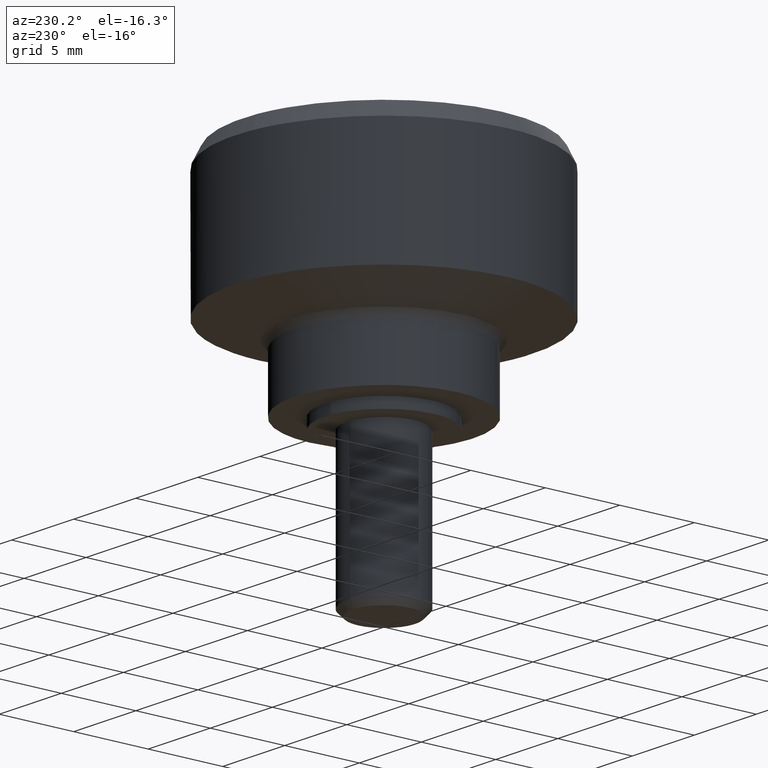
[diagram: clean part render]
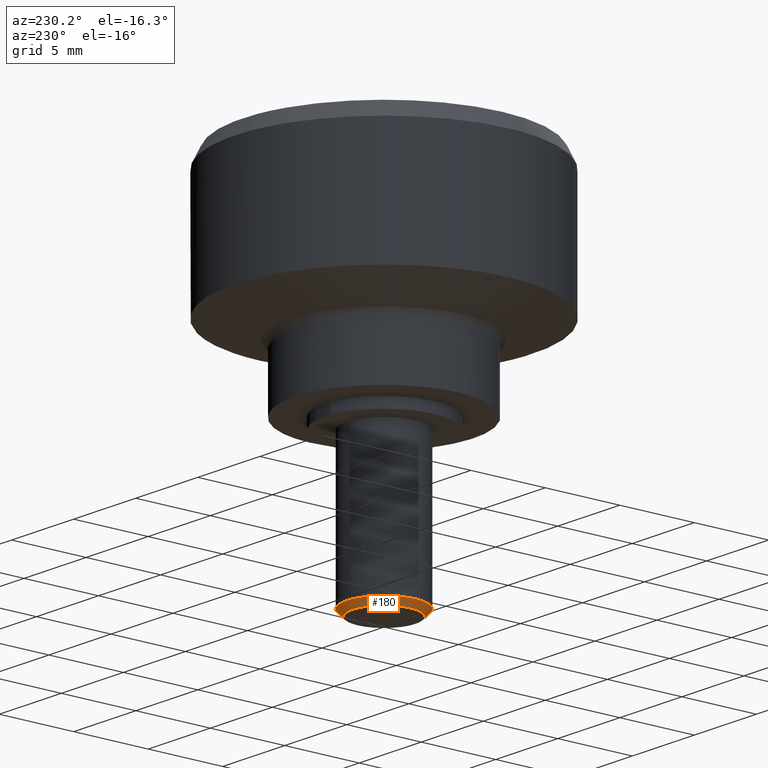
[diagram: same view with one face highlighted and labeled with its STEP entity id]
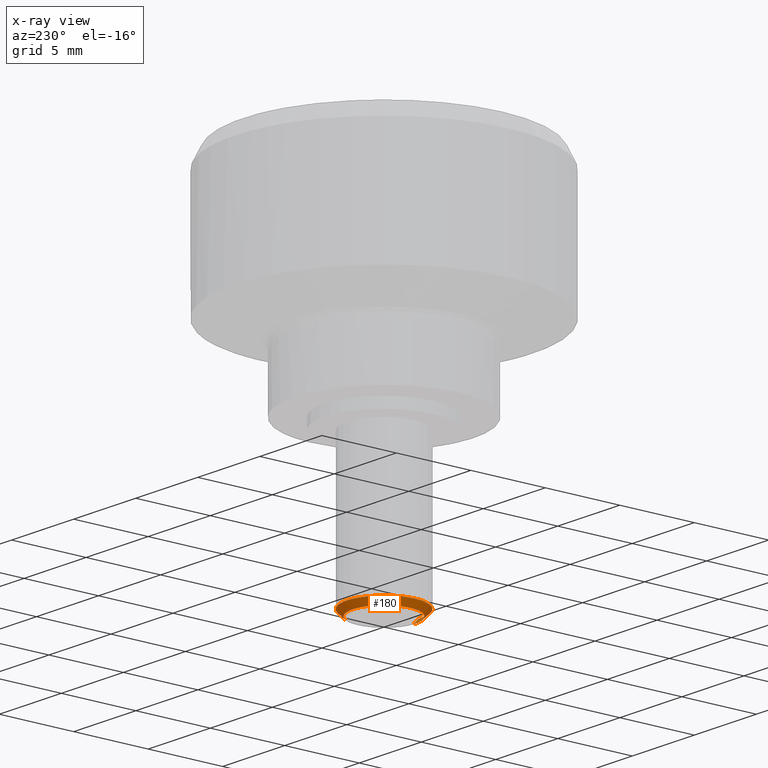
[diagram: x-ray of the same camera — body ghosted, the highlighted face saturated]
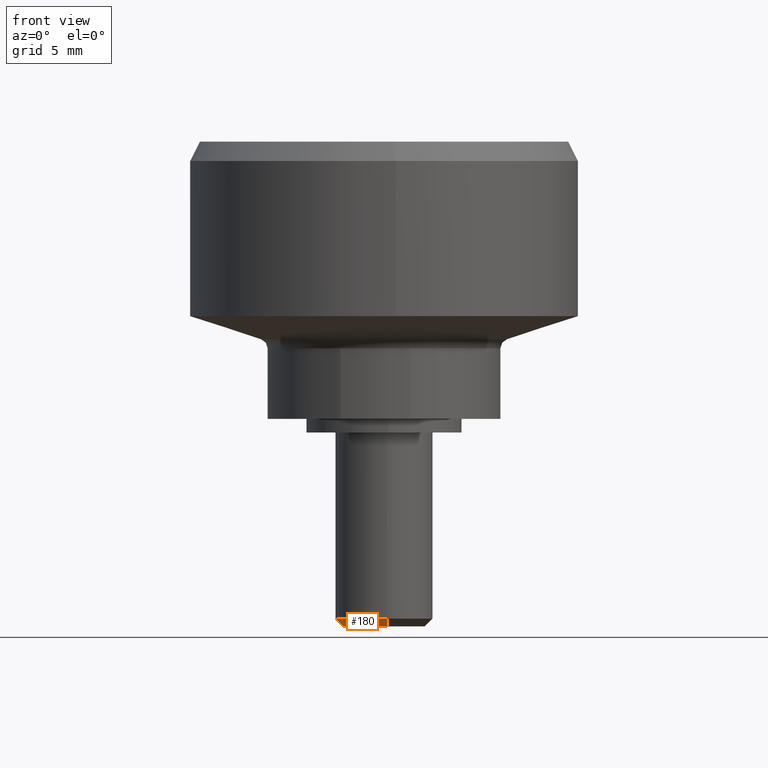
[diagram: same view with one face highlighted and labeled with its STEP entity id]
A machine part, auxiliary view. The second image highlights one B-rep face of the part: STEP entity #180.
The next image is the same camera in x-ray: the body ghosted, the highlighted face saturated — about 0% of this face is hidden behind the body in this view.
A second angle (front view) of the same face is appended — the face is thin or edge-on in the first view.
In plain terms, the highlighted face is a freeform B-spline surface patch.
Its self-contained STEP definition (entity closure, byte-faithful):
#44=CARTESIAN_POINT('',(1.761953702126592,1.124108158302564,-10.010000050000000));
#45=CARTESIAN_POINT('',(1.087021321162480,2.182013128159342,-10.010000050000002));
#46=CARTESIAN_POINT('',(-0.163979510071197,2.083557227502234,-10.010000050000000));
#47=CARTESIAN_POINT('',(-2.247536737573431,1.919577717431037,-10.010000050000002));
#48=CARTESIAN_POINT('',(-2.083557227502234,-0.163979510071197,-10.010000050000000));
#49=CARTESIAN_POINT('',(-1.919577717431037,-2.247536737573431,-10.010000050000002));
#50=CARTESIAN_POINT('',(0.163979510071197,-2.083557227502234,-10.010000050000000));
#51=CARTESIAN_POINT('',(2.116241282661857,1.350139954248333,-9.589747948749997));
#52=CARTESIAN_POINT('',(1.305595823659387,2.620764810986600,-9.589747948749997));
#53=CARTESIAN_POINT('',(-0.196951945050824,2.502511737003583,-9.589747948749997));
#54=CARTESIAN_POINT('',(-2.699463682054407,2.305559791952760,-9.589747948749997));
#55=CARTESIAN_POINT('',(-2.502511737003583,-0.196951945050824,-9.589747948749997));
#56=CARTESIAN_POINT('',(-2.305559791952760,-2.699463682054407,-9.589747948749997));
#57=CARTESIAN_POINT('',(0.196951945050824,-2.502511737003583,-9.589747948749997));
#65=(BOUNDED_SURFACE()B_SPLINE_SURFACE(2,1,((#44,#51),(#45,#52),(#46,#53),(#47,#54),(#48,#55),(#49,#56),(#50,#57)),.UNSPECIFIED.,.F.,.F.,.U.)B_SPLINE_SURFACE_WITH_KNOTS((3,2,2,3),(2,2),(0.0,2.828200498256006,6.987318878044252,11.146437257832501),(0.0,1.0),.UNSPECIFIED.)GEOMETRIC_REPRESENTATION_ITEM()RATIONAL_B_SPLINE_SURFACE(((0.872532871172386,0.872532871172386),(0.800832611206852,0.800832611206852),(1.0,1.0),(0.707106781186548,0.707106781186548),(1.0,1.0),(0.707106781186548,0.707106781186548),(1.0,1.0)))REPRESENTATION_ITEM('')SURFACE());
#66=CARTESIAN_POINT('',(-0.295085586662852,2.482523815906674,-9.599997999999999));
#67=VERTEX_POINT('',#66);
#68=CARTESIAN_POINT('',(2.107600122147681,1.344626983639012,-9.599997999998584));
#69=VERTEX_POINT('',#68);
#70=CARTESIAN_POINT('',(-0.295085586662852,2.482523815906674,-9.599997999999999));
#71=CARTESIAN_POINT('',(-0.148060299150953,2.500000000000000,-9.599997999999998));
#72=CARTESIAN_POINT('',(0.0,2.500000000000000,-9.599997999999999));
#73=CARTESIAN_POINT('',(1.370484140001695,2.500000000000000,-9.599998000000001));
#74=CARTESIAN_POINT('',(2.107600122147681,1.344626983639012,-9.599997999998584));
#82=(BOUNDED_CURVE()B_SPLINE_CURVE(2,(#70,#71,#72,#73,#74),.UNSPECIFIED.,.F.,.U.)B_SPLINE_CURVE_WITH_KNOTS((3,2,3),(0.229562473512791,0.250000000000000,0.407950112624275),.UNSPECIFIED.)CURVE()GEOMETRIC_REPRESENTATION_ITEM()RATIONAL_B_SPLINE_CURVE((0.956026754182293,0.976055948330305,1.0,0.814949932406116,0.863729296952900))REPRESENTATION_ITEM(''));
#83=EDGE_CURVE('',#67,#69,#82,.T.);
#84=ORIENTED_EDGE('',*,*,#83,.T.);
#85=CARTESIAN_POINT('',(1.770384102598399,1.129486666266773,-9.999999999998199));
#86=VERTEX_POINT('',#85);
#87=CARTESIAN_POINT('',(1.770384102598399,1.129486666266773,-9.999999999998199));
#88=CARTESIAN_POINT('',(2.107600122147681,1.344626983639012,-9.599997999998584));
#89=QUASI_UNIFORM_CURVE('',1,(#87,#88),.UNSPECIFIED.,.F.,.U.);
#90=EDGE_CURVE('',#86,#69,#89,.T.);
#91=ORIENTED_EDGE('',*,*,#90,.F.);
#92=CARTESIAN_POINT('',(-2.100000000000000,0.0,-10.0));
#93=VERTEX_POINT('',#92);
#94=CARTESIAN_POINT('',(-2.100000000000000,0.0,-10.0));
#95=CARTESIAN_POINT('',(-2.100000000000000,2.100000000000000,-10.000000000000002));
#96=CARTESIAN_POINT('',(0.0,2.100000000000000,-10.0));
#97=CARTESIAN_POINT('',(1.151206677586502,2.100000000000001,-10.0));
#98=CARTESIAN_POINT('',(1.770384102598399,1.129486666266773,-9.999999999998199));
#106=(BOUNDED_CURVE()B_SPLINE_CURVE(2,(#94,#95,#96,#97,#98),.UNSPECIFIED.,.F.,.U.)B_SPLINE_CURVE_WITH_KNOTS((3,2,3),(0.0,0.250000000000000,0.407950112622606),.UNSPECIFIED.)CURVE()GEOMETRIC_REPRESENTATION_ITEM()RATIONAL_B_SPLINE_CURVE((1.0,0.707106781186548,1.0,0.814949932408070,0.863729296951870))REPRESENTATION_ITEM(''));
#107=EDGE_CURVE('',#93,#86,#106,.T.);
#108=ORIENTED_EDGE('',*,*,#107,.F.);
#109=CARTESIAN_POINT('',(0.164764101123846,-2.093526400844485,-9.999999999987615));
#110=VERTEX_POINT('',#109);
#111=CARTESIAN_POINT('',(0.164764101123846,-2.093526400844485,-9.999999999987615));
#112=CARTESIAN_POINT('',(0.082509224810944,-2.100000000000001,-9.999999999999998));
#113=CARTESIAN_POINT('',(0.0,-2.100000000000000,-10.0));
#114=CARTESIAN_POINT('',(-2.100000000000000,-2.100000000000000,-10.000000000000002));
#115=CARTESIAN_POINT('',(-2.100000000000000,0.0,-10.0));
#123=(BOUNDED_CURVE()B_SPLINE_CURVE(2,(#111,#112,#113,#114,#115),.UNSPECIFIED.,.F.,.U.)B_SPLINE_CURVE_WITH_KNOTS((3,2,3),(0.736331300617307,0.750000000000000,1.0),.UNSPECIFIED.)CURVE()GEOMETRIC_REPRESENTATION_ITEM()RATIONAL_B_SPLINE_CURVE((0.969723356139553,0.983986122563239,1.0,0.707106781186548,1.0))REPRESENTATION_ITEM(''));
#124=EDGE_CURVE('',#110,#93,#123,.T.);
#125=ORIENTED_EDGE('',*,*,#124,.F.);
#126=CARTESIAN_POINT('',(0.196147739405670,-2.492293334337277,-9.599997999988801));
#127=VERTEX_POINT('',#126);
#128=CARTESIAN_POINT('',(0.164764101123846,-2.093526400844485,-9.999999999987615));
#129=CARTESIAN_POINT('',(0.196147739405670,-2.492293334337277,-9.599997999988801));
#130=QUASI_UNIFORM_CURVE('',1,(#128,#129),.UNSPECIFIED.,.F.,.U.);
#131=EDGE_CURVE('',#110,#127,#130,.T.);
#132=ORIENTED_EDGE('',*,*,#131,.T.);
#133=CARTESIAN_POINT('',(0.152621348862627,-2.495336996053108,-9.599997999999999));
#134=VERTEX_POINT('',#133);
#135=CARTESIAN_POINT('',(0.196147739405670,-2.492293334337278,-9.599997999988801));
#136=CARTESIAN_POINT('',(0.174397825005845,-2.494005089714098,-9.599998000000001));
#137=CARTESIAN_POINT('',(0.152621348862627,-2.495336996053108,-9.599997999999999));
#145=(BOUNDED_CURVE()B_SPLINE_CURVE(2,(#135,#136,#137),.UNSPECIFIED.,.F.,.U.)B_SPLINE_CURVE_WITH_KNOTS((3,3),(0.736331300621049,0.739332962238444),.UNSPECIFIED.)CURVE()GEOMETRIC_REPRESENTATION_ITEM()RATIONAL_B_SPLINE_CURVE((0.969723356147362,0.972855475549116,0.976072041665648))REPRESENTATION_ITEM(''));
#146=EDGE_CURVE('',#127,#134,#145,.T.);
#147=ORIENTED_EDGE('',*,*,#146,.T.);
#148=CARTESIAN_POINT('',(-2.500000000000000,0.0,-9.599997999999999));
#149=VERTEX_POINT('',#148);
#150=CARTESIAN_POINT('',(0.152621348862627,-2.495336996053108,-9.599997999999999));
#151=CARTESIAN_POINT('',(0.076381908272028,-2.500000000000000,-9.599998000000001));
#152=CARTESIAN_POINT('',(0.0,-2.500000000000000,-9.599997999999999));
#153=CARTESIAN_POINT('',(-2.500000000000000,-2.500000000000000,-9.599997999999999));
#154=CARTESIAN_POINT('',(-2.500000000000000,0.0,-9.599997999999999));
#162=(BOUNDED_CURVE()B_SPLINE_CURVE(2,(#150,#151,#152,#153,#154),.UNSPECIFIED.,.F.,.U.)B_SPLINE_CURVE_WITH_KNOTS((3,2,3),(0.739332962238444,0.750000000000000,1.0),.UNSPECIFIED.)CURVE()GEOMETRIC_REPRESENTATION_ITEM()RATIONAL_B_SPLINE_CURVE((0.976072041665648,0.987502787899253,1.0,0.707106781186548,1.0))REPRESENTATION_ITEM(''));
#163=EDGE_CURVE('',#134,#149,#162,.T.);
#164=ORIENTED_EDGE('',*,*,#163,.T.);
#165=CARTESIAN_POINT('',(-2.500000000000000,0.0,-9.599997999999999));
#166=CARTESIAN_POINT('',(-2.500000000000000,2.220436314840668,-9.599997999999998));
#167=CARTESIAN_POINT('',(-0.295085586662852,2.482523815906674,-9.599997999999999));
#175=(BOUNDED_CURVE()B_SPLINE_CURVE(2,(#165,#166,#167),.UNSPECIFIED.,.F.,.U.)B_SPLINE_CURVE_WITH_KNOTS((3,3),(0.0,0.229562473512791),.UNSPECIFIED.)CURVE()GEOMETRIC_REPRESENTATION_ITEM()RATIONAL_B_SPLINE_CURVE((1.0,0.731050832856243,0.956026754182293))REPRESENTATION_ITEM(''));
#176=EDGE_CURVE('',#149,#67,#175,.T.);
#177=ORIENTED_EDGE('',*,*,#176,.T.);
#178=EDGE_LOOP('',(#84,#91,#108,#125,#132,#147,#164,#177));
#179=FACE_OUTER_BOUND('',#178,.T.);
#180=ADVANCED_FACE('',(#179),#65,.T.);